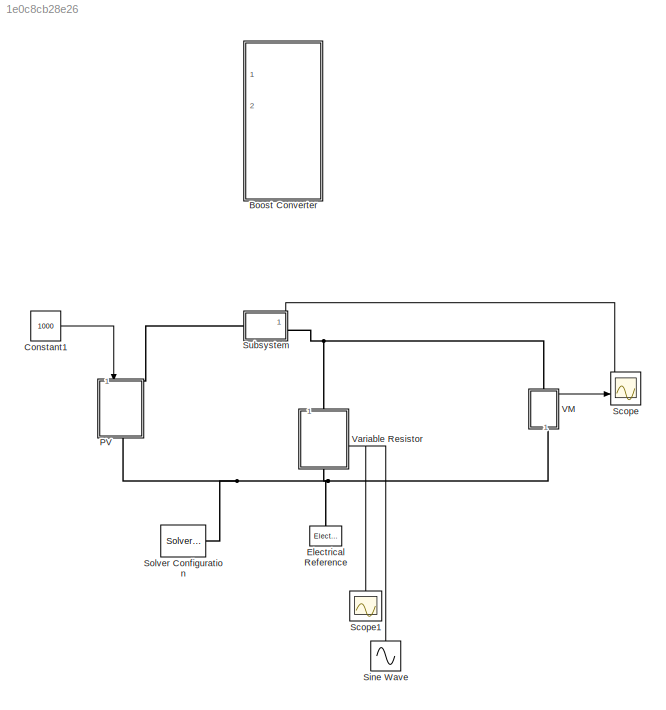
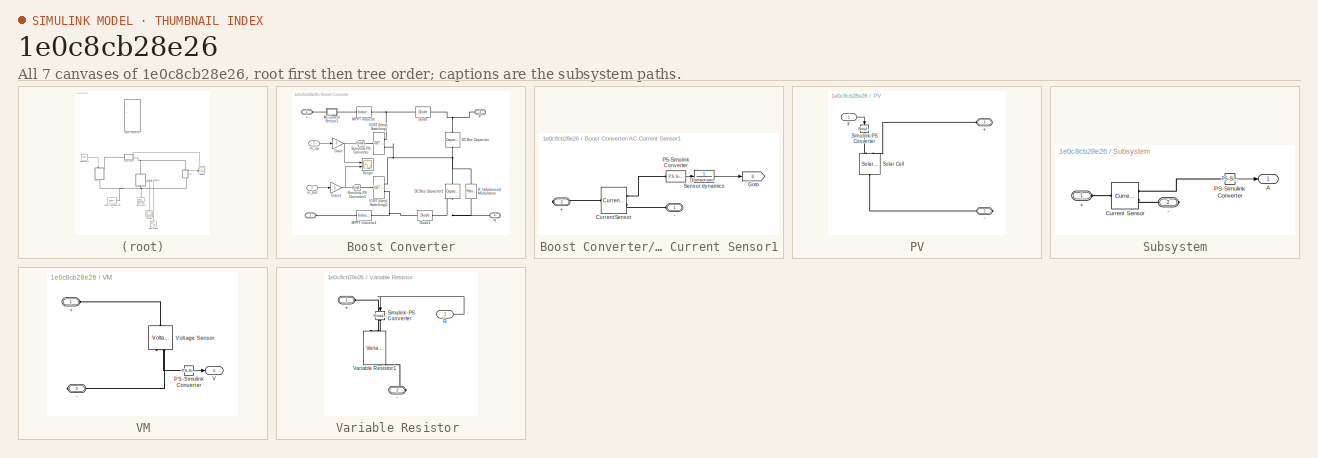
[diagram: thumbnail index - all 7 canvases of the model, root first then tree order]
MODEL slx_1e0c8cb28e26
KIND model
CONFIG AbsTol = auto
CONFIG EnableMultiTasking = off
CONFIG FixedStep = 1e-7
CONFIG MaxStep = auto
CONFIG MinStep = auto
CONFIG RelTol = 1e-3
CONFIG SampleTimeConstraint = Unconstrained
CONFIG SolverName = VariableStepAuto
CONFIG StartTime = 0.0
CONFIG StopTime = 100
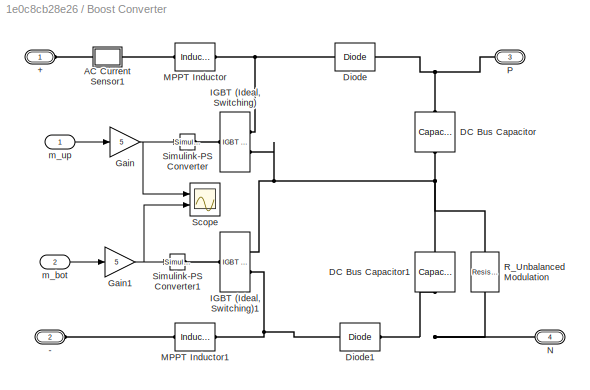
BLOCK [SubSystem] Boost Converter
  Ports = [2, 0, 0, 0, 0, 2, 2]
  RequestExecContextInheritance = off
  VariantControl = boostCircuit == 1
BLOCK [PMIOPort] Boost Converter/+
  Side = Left
BLOCK [PMIOPort] Boost Converter/-
  Port = 2
  Side = Left
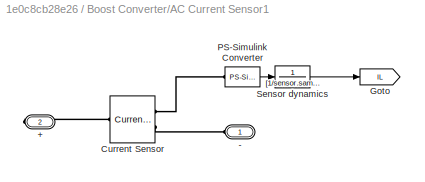
BLOCK [SubSystem] Boost Converter/AC Current Sensor1
  NameLocation = top
  Ports = [0, 0, 0, 0, 0, 1, 1]
  RequestExecContextInheritance = off
BLOCK [PMIOPort] Boost Converter/AC Current Sensor1/+
  Port = 2
  Side = Right
BLOCK [PMIOPort] Boost Converter/AC Current Sensor1/-
  Side = Left
BLOCK [Reference] Boost Converter/AC Current Sensor1/Current Sensor  REF=fl_lib/Electrical/Electrical Sensors/Current Sensor
  Ports = [0, 0, 0, 0, 0, 1, 2]
  SourceBlock = fl_lib/Electrical/Electrical Sensors/Current Sensor
  SourceProductName = Foundation Library
  SourceType = Current Sensor
BLOCK [Goto] Boost Converter/AC Current Sensor1/Goto
  GotoTag = IL
  TagVisibility = global
BLOCK [Reference] Boost Converter/AC Current Sensor1/PS-Simulink Converter  REF=nesl_utility/PS-Simulink
Converter
  Ports = [0, 1, 0, 0, 0, 1]
  SourceBlock = nesl_utility/PS-Simulink\nConverter
  SourceProductName = Utilities
  SourceType = PS-Simulink\nConverter
BLOCK [TransferFcn] Boost Converter/AC Current Sensor1/Sensor dynamics
  Denominator = [1/sensor.samplingFreq 1]
  Numerator = 1
BLOCK [Reference] Boost Converter/DC Bus Capacitor  REF=fl_lib/Electrical/Electrical Elements/Capacitor
  NameLocation = left
  Ports = [0, 0, 0, 0, 0, 1, 1]
  SourceBlock = fl_lib/Electrical/Electrical Elements/Capacitor
  SourceProductName = Foundation Library
  SourceType = Capacitor
BLOCK [Reference] Boost Converter/DC Bus Capacitor1  REF=fl_lib/Electrical/Electrical Elements/Capacitor
  NameLocation = left
  Ports = [0, 0, 0, 0, 0, 1, 1]
  SourceBlock = fl_lib/Electrical/Electrical Elements/Capacitor
  SourceProductName = Foundation Library
  SourceType = Capacitor
BLOCK [Reference] Boost Converter/Diode  REF=fl_lib/Electrical/Electrical Elements/Diode
  Ports = [0, 0, 0, 0, 0, 1, 1]
  SourceBlock = fl_lib/Electrical/Electrical Elements/Diode
  SourceProductName = Foundation Library
  SourceType = Diode
BLOCK [Reference] Boost Converter/Diode1  REF=fl_lib/Electrical/Electrical Elements/Diode
  Ports = [0, 0, 0, 0, 0, 1, 1]
  SourceBlock = fl_lib/Electrical/Electrical Elements/Diode
  SourceProductName = Foundation Library
  SourceType = Diode
BLOCK [Gain] Boost Converter/Gain
  Gain = 5
BLOCK [Gain] Boost Converter/Gain1
  Gain = 5
BLOCK [Reference] Boost Converter/IGBT (Ideal, Switching)  REF=ee_lib/Semiconductors &
Converters/IGBT
(Ideal,
Switching)
  Ports = [0, 0, 0, 0, 0, 1, 2]
  SourceBlock = ee_lib/Semiconductors &\nConverters/IGBT\n(Ideal,\nSwitching)
  SourceProductBaseCode = PS
  SourceType = IGBT\n(Ideal,\nSwitching)
BLOCK [Reference] Boost Converter/IGBT (Ideal, Switching)1  REF=ee_lib/Semiconductors &
Converters/IGBT
(Ideal,
Switching)
  Ports = [0, 0, 0, 0, 0, 1, 2]
  SourceBlock = ee_lib/Semiconductors &\nConverters/IGBT\n(Ideal,\nSwitching)
  SourceProductName = Electrical
  SourceType = IGBT\n(Ideal,\nSwitching)
BLOCK [Reference] Boost Converter/MPPT Inductor  REF=ee_lib/Passive/Inductor
  Ports = [0, 0, 0, 0, 0, 1, 1]
  SourceBlock = ee_lib/Passive/Inductor
  SourceProductName = Electrical
  SourceType = Inductor
BLOCK [Reference] Boost Converter/MPPT Inductor1  REF=ee_lib/Passive/Inductor
  Ports = [0, 0, 0, 0, 0, 1, 1]
  SourceBlock = ee_lib/Passive/Inductor
  SourceProductName = Electrical
  SourceType = Inductor
BLOCK [PMIOPort] Boost Converter/N
  Port = 4
  Side = Right
BLOCK [PMIOPort] Boost Converter/P
  Port = 3
  Side = Right
BLOCK [Reference] Boost Converter/R_Unbalanced Modulation  REF=fl_lib/Electrical/Electrical Elements/Resistor
  NameLocation = right
  Ports = [0, 0, 0, 0, 0, 1, 1]
  SourceBlock = fl_lib/Electrical/Electrical Elements/Resistor
  SourceProductBaseCode = SS
  SourceType = Resistor
BLOCK [Scope] Boost Converter/Scope
  Floating = off
  NumInputPorts = 2
  Ports = [2]
  ScopeSpecificationString = Simulink.scopes.TimeScopeBlockCfg('CurrentConfiguration', extmgr.ConfigurationSet(extmgr.Configuration('Core','General UI',true),extmgr.Configuration('Core','Source UI',true),extmgr.Configuration('Sources','WiredSimulink',true,'DataLoggingVariableName','ScopeData1'),extmgr.Configuration('Visuals','Time Domain',true,'SerializedDisplays',{struct('MinYLimReal','-0.55166','MaxYLimReal','5.48477','YLab...<+1458ch>
BLOCK [Reference] Boost Converter/Simulink-PS Converter  REF=nesl_utility/Simulink-PS
Converter
  Ports = [1, 0, 0, 0, 0, 0, 1]
  SourceBlock = nesl_utility/Simulink-PS\nConverter
  SourceProductName = Utilities
  SourceType = Simulink-PS\nConverter
BLOCK [Reference] Boost Converter/Simulink-PS Converter1  REF=nesl_utility/Simulink-PS
Converter
  Ports = [1, 0, 0, 0, 0, 0, 1]
  SourceBlock = nesl_utility/Simulink-PS\nConverter
  SourceProductName = Utilities
  SourceType = Simulink-PS\nConverter
BLOCK [Inport] Boost Converter/m_bot
  Port = 2
BLOCK [Inport] Boost Converter/m_up
BLOCK [Constant] Constant1
  Value = 1000
BLOCK [Reference] Electrical Reference  REF=fl_lib/Electrical/Electrical Elements/Electrical Reference
  NameLocation = left
  Ports = [0, 0, 0, 0, 0, 1]
  SourceBlock = fl_lib/Electrical/Electrical Elements/Electrical Reference
  SourceProductName = Foundation Library
  SourceType = Electrical Reference
BLOCK [SubSystem] PV
  NameLocation = left
  Ports = [1, 0, 0, 0, 0, 1, 1]
  RequestExecContextInheritance = off
BLOCK [PMIOPort] PV/+
  Side = Left
BLOCK [PMIOPort] PV/-
  Port = 2
  Side = Right
BLOCK [Inport] PV/Ir
BLOCK [Reference] PV/Simulink-PS Converter  REF=nesl_utility/Simulink-PS
Converter
  NameLocation = left
  Ports = [1, 0, 0, 0, 0, 0, 1]
  SourceBlock = nesl_utility/Simulink-PS\nConverter
  SourceProductBaseCode = PW,SS
  SourceType = Simulink-PS\nConverter
BLOCK [Reference] PV/Solar Cell  REF=ee_lib/Sources/Solar Cell
  NameLocation = right
  Ports = [0, 0, 0, 0, 0, 2, 1]
  SourceBlock = ee_lib/Sources/Solar Cell
  SourceProductBaseCode = PS
  SourceType = Solar Cell
BLOCK [Scope] Scope
  Floating = off
  NumInputPorts = 2
  Ports = [2]
  ScopeSpecificationString = Simulink.scopes.TimeScopeBlockCfg('CurrentConfiguration', extmgr.ConfigurationSet(extmgr.Configuration('Core','General UI',true),extmgr.Configuration('Core','Source UI',true),extmgr.Configuration('Sources','WiredSimulink',true),extmgr.Configuration('Visuals','Time Domain',true,'SerializedDisplays',{struct('MinYLimReal','-1.31224','MaxYLimReal','11.81014','YLabelReal','','MinYLimMag','0.00000','Max...<+1397ch>
BLOCK [Scope] Scope1
  Commented = on
  Floating = off
  NameLocation = left
  NumInputPorts = 1
  Ports = [1]
  ScopeSpecificationString = Simulink.scopes.TimeScopeBlockCfg('CurrentConfiguration', extmgr.ConfigurationSet(extmgr.Configuration('Core','General UI',true),extmgr.Configuration('Core','Source UI',true),extmgr.Configuration('Sources','WiredSimulink',true,'DataLoggingVariableName','ScopeData1'),extmgr.Configuration('Visuals','Time Domain',true,'SerializedDisplays',{struct('MinYLimReal','-0.5','MaxYLimReal','4.5','YLabelReal',...<+1400ch>
BLOCK [Sin] Sine Wave
  Amplitude = 2
  Bias = 2
  Commented = on
  Frequency = 0.01*pi
  NameLocation = right
  Phase = -pi/2
  Ports = [0, 1]
  SampleTime = 0
BLOCK [Reference] Solver Configuration  REF=nesl_utility/Solver
Configuration
  Ports = [0, 0, 0, 0, 0, 0, 1]
  SourceBlock = nesl_utility/Solver\nConfiguration
  SourceProductBaseCode = PW,SS
  SourceType = Solver\nConfiguration
BLOCK [SubSystem] Subsystem
  PortSchema = {"entries":[{"content":{"sides":[{"content":{"connectorIds":["LConn1"]},"type":"ConnectorPlacement.EquallySpacedRectSide","uuid":"2992596f-55e9-4f28-9b1a-e504a3bebbe0"},{"content":{"connectorIds":["RConn1"],"side":"RIGHT"},"type":"ConnectorPlacement.EquallySpacedRectSide","uuid":"47798d89-5845-42f3-b67b-14445f85a167"},{"content":{"connectorIds":["Out1"],"side":"TOP"},"type":"ConnectorPlacement.Equ...<+251ch>
  Ports = [0, 1, 0, 0, 0, 1, 1]
  RequestExecContextInheritance = off
BLOCK [PMIOPort] Subsystem/+
  Side = Left
BLOCK [PMIOPort] Subsystem/-
  Port = 2
  Side = Right
BLOCK [Outport] Subsystem/A
BLOCK [Reference] Subsystem/Current Sensor  REF=fl_lib/Electrical/Electrical Sensors/Current Sensor
  Ports = [0, 0, 0, 0, 0, 1, 2]
  SourceBlock = fl_lib/Electrical/Electrical Sensors/Current Sensor
  SourceProductBaseCode = SS
  SourceType = Current Sensor
BLOCK [Reference] Subsystem/PS-Simulink Converter  REF=nesl_utility/PS-Simulink
Converter
  Ports = [0, 1, 0, 0, 0, 1]
  SourceBlock = nesl_utility/PS-Simulink\nConverter
  SourceProductBaseCode = PW,SS
  SourceType = PS-Simulink\nConverter
BLOCK [SubSystem] VM
  NameLocation = left
  PortSchema = {"entries":[{"content":{"sides":[{"content":{"connectorIds":["LConn1"]},"type":"ConnectorPlacement.EquallySpacedRectSide","uuid":"2992596f-55e9-4f28-9b1a-e504a3bebbe0"},{"content":{"connectorIds":["RConn1"],"side":"RIGHT"},"type":"ConnectorPlacement.EquallySpacedRectSide","uuid":"47798d89-5845-42f3-b67b-14445f85a167"},{"content":{"connectorIds":[],"side":"TOP"},"type":"ConnectorPlacement.EquallySp...<+395ch>
  Ports = [0, 1, 0, 0, 0, 1, 1]
  RequestExecContextInheritance = off
BLOCK [PMIOPort] VM/+
  Side = Left
BLOCK [PMIOPort] VM/-
  Port = 2
  Side = Right
BLOCK [Reference] VM/PS-Simulink Converter  REF=nesl_utility/PS-Simulink
Converter
  Ports = [0, 1, 0, 0, 0, 1]
  SourceBlock = nesl_utility/PS-Simulink\nConverter
  SourceProductBaseCode = PW,SS
  SourceType = PS-Simulink\nConverter
BLOCK [Outport] VM/V
BLOCK [Reference] VM/Voltage Sensor  REF=fl_lib/Electrical/Electrical Sensors/Voltage Sensor
  NameLocation = right
  Ports = [0, 0, 0, 0, 0, 1, 2]
  SourceBlock = fl_lib/Electrical/Electrical Sensors/Voltage Sensor
  SourceProductBaseCode = SS
  SourceType = Voltage Sensor
BLOCK [SubSystem] Variable Resistor 
  Commented = on
  NameLocation = left
  PortSchema = {"entries":[{"content":{"sides":[{"content":{"connectorIds":["LConn1"]},"type":"ConnectorPlacement.EquallySpacedRectSide","uuid":"6675d17e-ea64-4e4d-a2c4-85ec1f1052d8"},{"content":{"connectorIds":["RConn1"],"side":"RIGHT"},"type":"ConnectorPlacement.EquallySpacedRectSide","uuid":"f688eef1-8267-416b-84ce-eec7604b78e1"},{"content":{"connectorIds":[],"side":"TOP"},"type":"ConnectorPlacement.EquallySp...<+394ch>
  Ports = [1, 0, 0, 0, 0, 1, 1]
  RequestExecContextInheritance = off
BLOCK [PMIOPort] Variable Resistor /+
  Side = Left
BLOCK [PMIOPort] Variable Resistor /-
  Port = 2
  Side = Right
BLOCK [Inport] Variable Resistor /R
BLOCK [Reference] Variable Resistor /Simulink-PS Converter  REF=nesl_utility/Simulink-PS
Converter
  NameLocation = left
  Ports = [1, 0, 0, 0, 0, 0, 1]
  SourceBlock = nesl_utility/Simulink-PS\nConverter
  SourceProductBaseCode = PW,SS
  SourceType = Simulink-PS\nConverter
BLOCK [Reference] Variable Resistor /Variable Resistor1  REF=fl_lib/Electrical/Electrical Elements/Variable Resistor
  NameLocation = left
  Ports = [0, 0, 0, 0, 0, 2, 1]
  SourceBlock = fl_lib/Electrical/Electrical Elements/Variable Resistor
  SourceProductBaseCode = SS
  SourceType = Variable Resistor
LINE Boost Converter/AC Current Sensor1/PS-Simulink Converter:1 -> Boost Converter/AC Current Sensor1/Sensor dynamics:1
LINE Boost Converter/AC Current Sensor1/Sensor dynamics:1 -> Boost Converter/AC Current Sensor1/Goto:1
NET Boost Converter/Gain1:1 -> Boost Converter/Scope:2, Boost Converter/Simulink-PS Converter1:1
NET Boost Converter/Gain:1 -> Boost Converter/Scope:1, Boost Converter/Simulink-PS Converter:1
LINE Boost Converter/m_bot:1 -> Boost Converter/Gain1:1
LINE Boost Converter/m_up:1 -> Boost Converter/Gain:1
LINE Constant1:1 -> PV:1
LINE PV/Ir:1 -> PV/Simulink-PS Converter:1
NET Sine Wave:1 -> Scope1:1, Variable Resistor :1
LINE Subsystem/PS-Simulink Converter:1 -> Subsystem/A:1
LINE Subsystem:1 -> Scope:1
LINE VM/PS-Simulink Converter:1 -> VM/V:1
LINE VM:1 -> Scope:2
LINE Variable Resistor /R:1 -> Variable Resistor /Simulink-PS Converter:1
PLINE Boost Converter/+:RConn1 -- Boost Converter/AC Current Sensor1:RConn1
PLINE Boost Converter/-:RConn1 -- Boost Converter/MPPT Inductor1:LConn1
PLINE Boost Converter/AC Current Sensor1/+:RConn1 -- Boost Converter/AC Current Sensor1/Current Sensor:LConn1
PLINE Boost Converter/AC Current Sensor1/-:RConn1 -- Boost Converter/AC Current Sensor1/Current Sensor:RConn2
PLINE Boost Converter/AC Current Sensor1/Current Sensor:RConn1 -- Boost Converter/AC Current Sensor1/PS-Simulink Converter:LConn1
PLINE Boost Converter/AC Current Sensor1:LConn1 -- Boost Converter/MPPT Inductor:LConn1
PNET net1: Boost Converter/DC Bus Capacitor1:LConn1 -- Boost Converter/DC Bus Capacitor:RConn1 -- Boost Converter/IGBT (Ideal, Switching)1:RConn1 -- Boost Converter/IGBT (Ideal, Switching):RConn2 -- Boost Converter/R_Unbalanced Modulation:LConn1
PNET net2: Boost Converter/DC Bus Capacitor1:RConn1 -- Boost Converter/Diode1:LConn1 -- Boost Converter/N:RConn1 -- Boost Converter/R_Unbalanced Modulation:RConn1
PNET net3: Boost Converter/DC Bus Capacitor:LConn1 -- Boost Converter/Diode:RConn1 -- Boost Converter/P:RConn1
PNET net4: Boost Converter/Diode1:RConn1 -- Boost Converter/IGBT (Ideal, Switching)1:RConn2 -- Boost Converter/MPPT Inductor1:RConn1
PNET net5: Boost Converter/Diode:LConn1 -- Boost Converter/IGBT (Ideal, Switching):RConn1 -- Boost Converter/MPPT Inductor:RConn1
PLINE Boost Converter/IGBT (Ideal, Switching)1:LConn1 -- Boost Converter/Simulink-PS Converter1:RConn1
PLINE Boost Converter/IGBT (Ideal, Switching):LConn1 -- Boost Converter/Simulink-PS Converter:RConn1
PNET net6: Electrical Reference:LConn1 -- PV:RConn1 -- Solver Configuration:RConn1 -- VM:RConn1 -- Variable Resistor :RConn1
PLINE PV/+:RConn1 -- PV/Solar Cell:LConn2
PLINE PV/-:RConn1 -- PV/Solar Cell:RConn1
PLINE PV/Simulink-PS Converter:RConn1 -- PV/Solar Cell:LConn1
PLINE PV:LConn1 -- Subsystem:LConn1
PLINE Subsystem/+:RConn1 -- Subsystem/Current Sensor:LConn1
PLINE Subsystem/-:RConn1 -- Subsystem/Current Sensor:RConn2
PLINE Subsystem/Current Sensor:RConn1 -- Subsystem/PS-Simulink Converter:LConn1
PNET net7: Subsystem:RConn1 -- VM:LConn1 -- Variable Resistor :LConn1
PLINE VM/+:RConn1 -- VM/Voltage Sensor:LConn1
PLINE VM/-:RConn1 -- VM/Voltage Sensor:RConn2
PLINE VM/PS-Simulink Converter:LConn1 -- VM/Voltage Sensor:RConn1
PLINE Variable Resistor /+:RConn1 -- Variable Resistor /Variable Resistor1:LConn2
PLINE Variable Resistor /-:RConn1 -- Variable Resistor /Variable Resistor1:RConn1
PLINE Variable Resistor /Simulink-PS Converter:RConn1 -- Variable Resistor /Variable Resistor1:LConn1
note: NET lines group one-source signal fan-out (src -> all destinations, sorted); 1:1 wires keep LINE; PNET lines group multi-terminal physical nets as a canonical sorted terminal list (undirected conserving connections); 2-terminal nets keep the pairwise PLINE form
